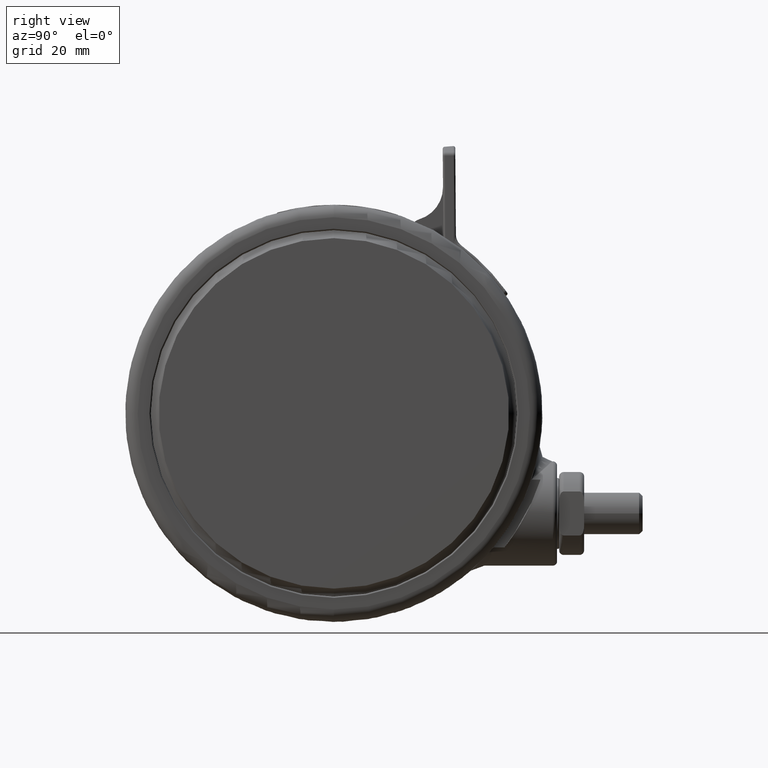
[diagram: clean part render]
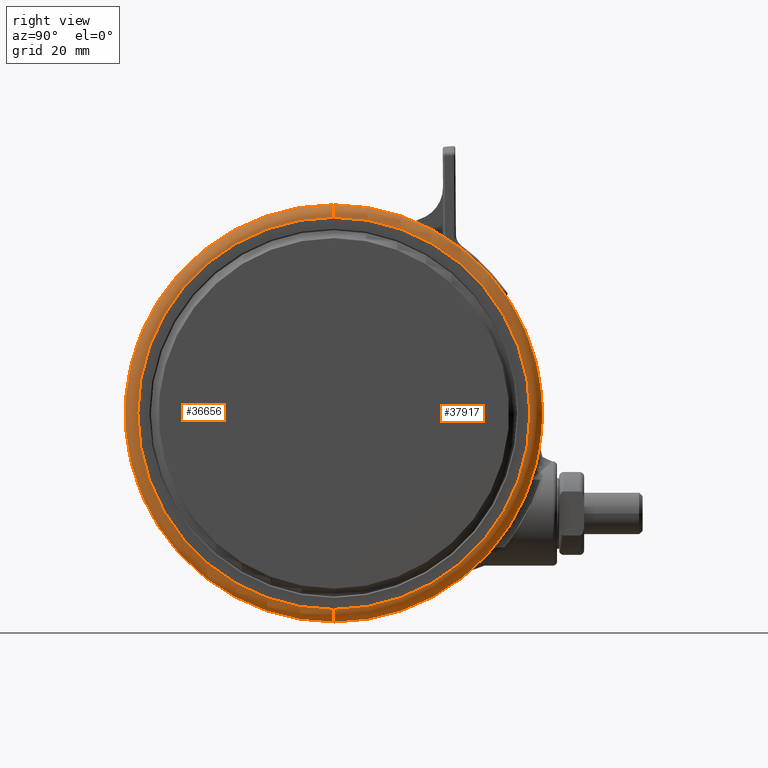
[diagram: same view with one multi-face feature highlighted, each face labeled with its STEP entity id]
A machine part, right view. The highlighted faces form ONE feature: a constant-radius fillet chain: 2 tangent blend faces with common blend radius 3 mm. The faces share edges in the B-rep.
Their STEP definitions:
[1] entity #36656 (Torus):
#98 = AXIS2_PLACEMENT_3D ( 'NONE', #19986, #46356, #23764 ) ;
#211 = EDGE_CURVE ( 'NONE', #879, #828, #33333, .T. ) ;
#828 = VERTEX_POINT ( 'NONE', #43513 ) ;
#879 = VERTEX_POINT ( 'NONE', #43673 ) ;
#2284 = CARTESIAN_POINT ( 'NONE',  ( -1.394157828206119900E-014, 1.333397076121845300E-015, -5.099999999999828200 ) ) ;
#3370 = CARTESIAN_POINT ( 'NONE',  ( -1.394157828206119900E-014, 1.333397076121845300E-015, -5.099999999999828200 ) ) ;
#3496 = DIRECTION ( 'NONE',  ( 1.000000000000000000, 2.733876061888929400E-016, 0.0000000000000000000 ) ) ;
#5047 = EDGE_LOOP ( 'NONE', ( #41861, #9529, #23140, #36501 ) ) ;
#5425 = EDGE_CURVE ( 'NONE', #879, #42199, #12248, .T. ) ;
#6071 = DIRECTION ( 'NONE',  ( 1.000000000000000000, 1.509229262741580400E-016, -1.734723475976807100E-017 ) ) ;
#9529 = ORIENTED_EDGE ( 'NONE', *, *, #211, .F. ) ;
#11644 = CIRCLE ( 'NONE', #27216, 3.000000000000002700 ) ;
#12248 = CIRCLE ( 'NONE', #38539, 3.000000000000002700 ) ;
#19986 = CARTESIAN_POINT ( 'NONE',  ( -1.387778780781445700E-014, 1.734723475976807100E-015, -2.099999999999938800 ) ) ;
#20355 = CARTESIAN_POINT ( 'NONE',  ( 46.99999999999998600, 8.426774611007273000E-015, -5.099999999999829100 ) ) ;
#22875 = AXIS2_PLACEMENT_3D ( 'NONE', #2284, #28699, #6071 ) ;
#23140 = ORIENTED_EDGE ( 'NONE', *, *, #5425, .T. ) ;
#23337 = EDGE_CURVE ( 'NONE', #828, #28994, #11644, .T. ) ;
#23764 = DIRECTION ( 'NONE',  ( 1.000000000000000000, 1.509229262741580100E-016, -1.845450506358305400E-017 ) ) ;
#24123 = DIRECTION ( 'NONE',  ( -1.000000000000000000, -1.509229262741580100E-016, 0.0000000000000000000 ) ) ;
#24897 = CARTESIAN_POINT ( 'NONE',  ( -50.00000000000001400, -1.233598323332281900E-014, -5.099999999999827300 ) ) ;
#26109 = DIRECTION ( 'NONE',  ( 2.733876061888933300E-016, -1.000000000000000000, 1.337754666183254700E-016 ) ) ;
#27216 = AXIS2_PLACEMENT_3D ( 'NONE', #48679, #26109, #3496 ) ;
#27320 = CARTESIAN_POINT ( 'NONE',  ( 49.99999999999998600, 8.879543389829747400E-015, -5.099999999999829100 ) ) ;
#28699 = DIRECTION ( 'NONE',  ( -2.126349141558171900E-017, -1.337754666183254700E-016, -1.000000000000000000 ) ) ;
#28994 = VERTEX_POINT ( 'NONE', #24897 ) ;
#29772 = DIRECTION ( 'NONE',  ( -2.126349141558171900E-017, -1.337754666183254700E-016, -1.000000000000000000 ) ) ;
#30790 = CIRCLE ( 'NONE', #22875, 50.00000000000000000 ) ;
#31219 = FACE_OUTER_BOUND ( 'NONE', #5047, .T. ) ;
#33333 = CIRCLE ( 'NONE', #98, 47.00000000000000000 ) ;
#33577 = DIRECTION ( 'NONE',  ( 1.000000000000000000, 1.509229262741580100E-016, -2.126349141558173700E-017 ) ) ;
#36501 = ORIENTED_EDGE ( 'NONE', *, *, #48256, .F. ) ;
#36656 = ADVANCED_FACE ( 'NONE', ( #31219 ), #41202, .T. ) ;
#38539 = AXIS2_PLACEMENT_3D ( 'NONE', #20355, #46718, #24123 ) ;
#41202 = TOROIDAL_SURFACE ( 'NONE', #45828, 47.00000000000000000, 3.000000000000000000 ) ;
#41861 = ORIENTED_EDGE ( 'NONE', *, *, #23337, .F. ) ;
#42199 = VERTEX_POINT ( 'NONE', #27320 ) ;
#43513 = CARTESIAN_POINT ( 'NONE',  ( -47.00000000000001400, -1.172523862411199300E-014, -2.099999999999937900 ) ) ;
#43673 = CARTESIAN_POINT ( 'NONE',  ( 46.99999999999998600, 8.828101010862234300E-015, -2.099999999999939700 ) ) ;
#45828 = AXIS2_PLACEMENT_3D ( 'NONE', #3370, #29772, #33577 ) ;
#46356 = DIRECTION ( 'NONE',  ( 2.126349141558171900E-017, 1.337754666183254700E-016, 1.000000000000000000 ) ) ;
#46718 = DIRECTION ( 'NONE',  ( -1.509229262741580100E-016, 1.000000000000000000, -1.337754666183254700E-016 ) ) ;
#48256 = EDGE_CURVE ( 'NONE', #28994, #42199, #30790, .T. ) ;
#48679 = CARTESIAN_POINT ( 'NONE',  ( -47.00000000000001400, -1.151582041475614100E-014, -5.099999999999827300 ) ) ;
[2] entity #37917 (Torus):
#828 = VERTEX_POINT ( 'NONE', #43513 ) ;
#879 = VERTEX_POINT ( 'NONE', #43673 ) ;
#3080 = DIRECTION ( 'NONE',  ( -2.126349141558171900E-017, -1.337754666183254700E-016, -1.000000000000000000 ) ) ;
#3496 = DIRECTION ( 'NONE',  ( 1.000000000000000000, 2.733876061888929400E-016, 0.0000000000000000000 ) ) ;
#5240 = ORIENTED_EDGE ( 'NONE', *, *, #46746, .F. ) ;
#5425 = EDGE_CURVE ( 'NONE', #879, #42199, #12248, .T. ) ;
#9324 = CARTESIAN_POINT ( 'NONE',  ( -1.394157828206119900E-014, 1.333397076121845300E-015, -5.099999999999828200 ) ) ;
#11644 = CIRCLE ( 'NONE', #27216, 3.000000000000002700 ) ;
#12248 = CIRCLE ( 'NONE', #38539, 3.000000000000002700 ) ;
#13034 = AXIS2_PLACEMENT_3D ( 'NONE', #39522, #16966, #43317 ) ;
#16966 = DIRECTION ( 'NONE',  ( 2.126349141558171900E-017, 1.337754666183254700E-016, 1.000000000000000000 ) ) ;
#17845 = EDGE_LOOP ( 'NONE', ( #33091, #48885, #5240, #22467 ) ) ;
#20355 = CARTESIAN_POINT ( 'NONE',  ( 46.99999999999998600, 8.426774611007273000E-015, -5.099999999999829100 ) ) ;
#22467 = ORIENTED_EDGE ( 'NONE', *, *, #5425, .F. ) ;
#23337 = EDGE_CURVE ( 'NONE', #828, #28994, #11644, .T. ) ;
#24123 = DIRECTION ( 'NONE',  ( -1.000000000000000000, -1.509229262741580100E-016, 0.0000000000000000000 ) ) ;
#24897 = CARTESIAN_POINT ( 'NONE',  ( -50.00000000000001400, -1.233598323332281900E-014, -5.099999999999827300 ) ) ;
#25513 = CIRCLE ( 'NONE', #26964, 50.00000000000000000 ) ;
#25670 = CARTESIAN_POINT ( 'NONE',  ( -1.394157828206119900E-014, 1.333397076121845300E-015, -5.099999999999828200 ) ) ;
#26109 = DIRECTION ( 'NONE',  ( 2.733876061888933300E-016, -1.000000000000000000, 1.337754666183254700E-016 ) ) ;
#26964 = AXIS2_PLACEMENT_3D ( 'NONE', #25670, #3080, #29481 ) ;
#27216 = AXIS2_PLACEMENT_3D ( 'NONE', #48679, #26109, #3496 ) ;
#27320 = CARTESIAN_POINT ( 'NONE',  ( 49.99999999999998600, 8.879543389829747400E-015, -5.099999999999829100 ) ) ;
#28994 = VERTEX_POINT ( 'NONE', #24897 ) ;
#29481 = DIRECTION ( 'NONE',  ( 1.000000000000000000, 1.509229262741580400E-016, -1.734723475976807100E-017 ) ) ;
#33091 = ORIENTED_EDGE ( 'NONE', *, *, #45639, .F. ) ;
#33600 = AXIS2_PLACEMENT_3D ( 'NONE', #9324, #39512, #43310 ) ;
#37634 = FACE_OUTER_BOUND ( 'NONE', #17845, .T. ) ;
#37917 = ADVANCED_FACE ( 'NONE', ( #37634 ), #47637, .T. ) ;
#38539 = AXIS2_PLACEMENT_3D ( 'NONE', #20355, #46718, #24123 ) ;
#39512 = DIRECTION ( 'NONE',  ( -2.126349141558171900E-017, -1.337754666183254700E-016, -1.000000000000000000 ) ) ;
#39522 = CARTESIAN_POINT ( 'NONE',  ( -1.387778780781445700E-014, 1.734723475976807100E-015, -2.099999999999938800 ) ) ;
#41540 = CIRCLE ( 'NONE', #13034, 47.00000000000000000 ) ;
#42199 = VERTEX_POINT ( 'NONE', #27320 ) ;
#43310 = DIRECTION ( 'NONE',  ( 1.000000000000000000, 1.509229262741580100E-016, -2.126349141558173700E-017 ) ) ;
#43317 = DIRECTION ( 'NONE',  ( 1.000000000000000000, 1.509229262741580100E-016, -1.845450506358305400E-017 ) ) ;
#43513 = CARTESIAN_POINT ( 'NONE',  ( -47.00000000000001400, -1.172523862411199300E-014, -2.099999999999937900 ) ) ;
#43673 = CARTESIAN_POINT ( 'NONE',  ( 46.99999999999998600, 8.828101010862234300E-015, -2.099999999999939700 ) ) ;
#45639 = EDGE_CURVE ( 'NONE', #828, #879, #41540, .T. ) ;
#46718 = DIRECTION ( 'NONE',  ( -1.509229262741580100E-016, 1.000000000000000000, -1.337754666183254700E-016 ) ) ;
#46746 = EDGE_CURVE ( 'NONE', #42199, #28994, #25513, .T. ) ;
#47637 = TOROIDAL_SURFACE ( 'NONE', #33600, 47.00000000000000000, 3.000000000000000000 ) ;
#48679 = CARTESIAN_POINT ( 'NONE',  ( -47.00000000000001400, -1.151582041475614100E-014, -5.099999999999827300 ) ) ;
#48885 = ORIENTED_EDGE ( 'NONE', *, *, #23337, .T. ) ;